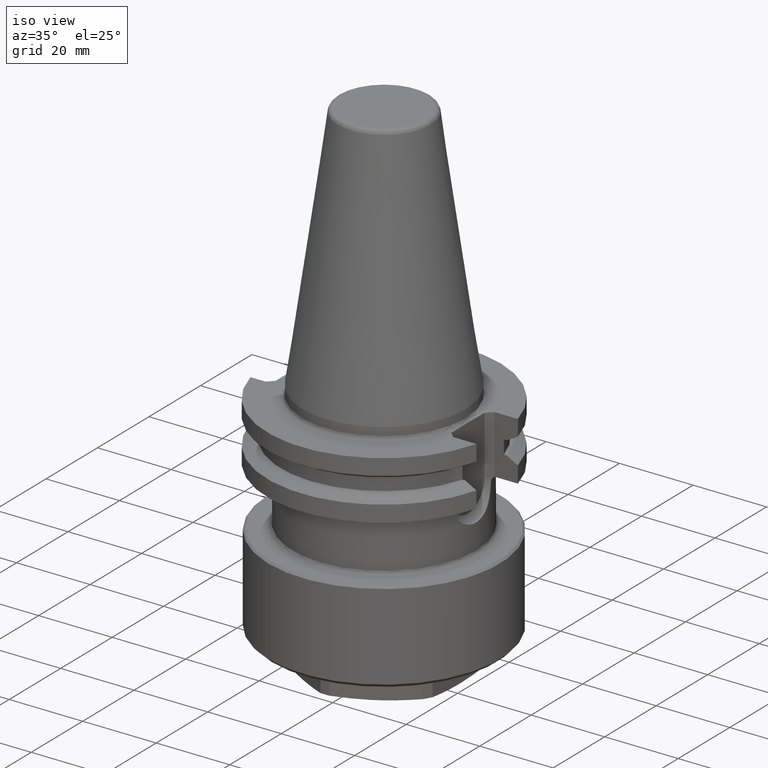
[diagram: clean part render]
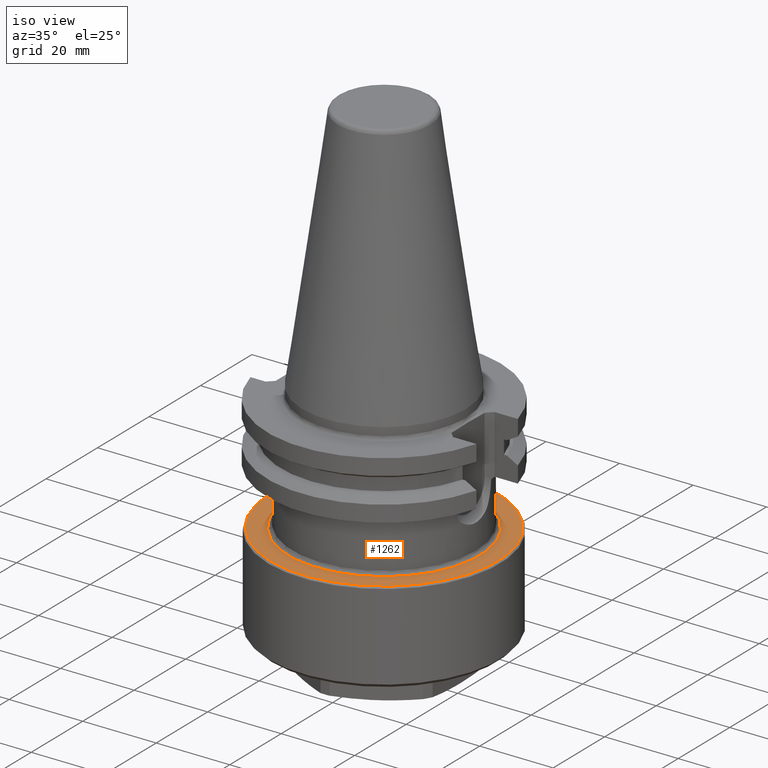
[diagram: same view with one face highlighted and labeled with its STEP entity id]
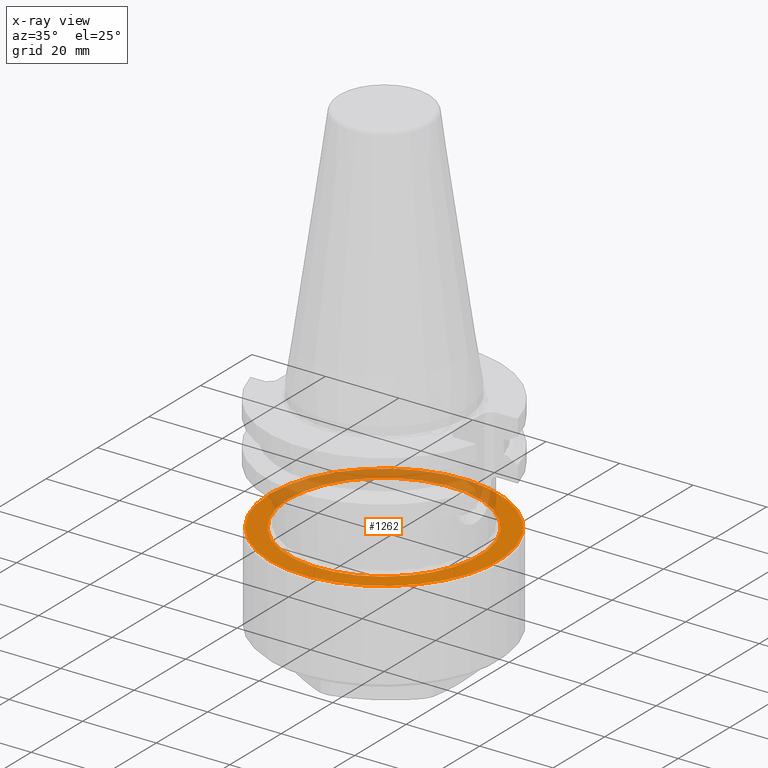
[diagram: x-ray of the same camera — body ghosted, the highlighted face saturated]
A machine part, iso view. The second image highlights one B-rep face of the part: STEP entity #1262.
The next image is the same camera in x-ray: the body ghosted, the highlighted face saturated — about 34% of this face is hidden behind the body in this view.
In plain terms, the highlighted planar face has unit normal (0, 0, -1).
Its self-contained STEP definition (entity closure, byte-faithful):
#367=ORIENTED_EDGE('',*,*,#683,.T.);
#368=ORIENTED_EDGE('',*,*,#682,.T.);
#682=EDGE_CURVE('',#850,#850,#962,.F.);
#683=EDGE_CURVE('',#851,#851,#963,.T.);
#850=VERTEX_POINT('',#2068);
#851=VERTEX_POINT('',#2071);
#962=CIRCLE('',#1371,31.);
#963=CIRCLE('',#1373,26.);
#1037=EDGE_LOOP('',(#367));
#1038=EDGE_LOOP('',(#368));
#1136=FACE_BOUND('',#1037,.T.);
#1137=FACE_BOUND('',#1038,.T.);
#1214=PLANE('',#1372);
#1262=ADVANCED_FACE('',(#1136,#1137),#1214,.F.);
#1371=AXIS2_PLACEMENT_3D('',#2067,#1575,#1576);
#1372=AXIS2_PLACEMENT_3D('',#2069,#1577,#1578);
#1373=AXIS2_PLACEMENT_3D('',#2070,#1579,#1580);
#1575=DIRECTION('',(0.,2.22044604925031E-16,-1.));
#1576=DIRECTION('',(-1.,0.,0.));
#1577=DIRECTION('',(0.,2.22044604925031E-16,-1.));
#1578=DIRECTION('',(-1.,0.,0.));
#1579=DIRECTION('',(0.,2.22044604925031E-16,-1.));
#1580=DIRECTION('',(-1.,0.,0.));
#2067=CARTESIAN_POINT('',(0.,7.7715611723761E-15,-35.));
#2068=CARTESIAN_POINT('',(-31.,7.7715611723761E-15,-35.));
#2069=CARTESIAN_POINT('',(0.,25.,-35.));
#2070=CARTESIAN_POINT('',(0.,7.7715611723761E-15,-35.));
#2071=CARTESIAN_POINT('',(-26.,7.7715611723761E-15,-35.));